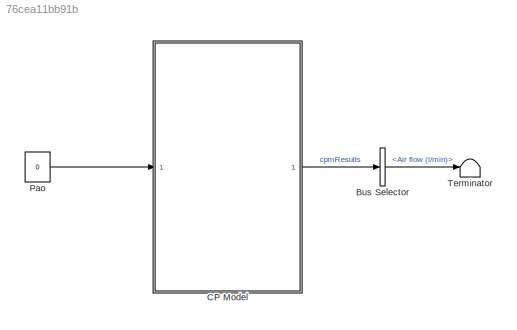
MODEL slx_76cea11bb91b
KIND model
CONFIG AbsTol = auto
CONFIG EnableMultiTasking = on
CONFIG FixedStep = StepSize
CONFIG InitFcn = logFreq = 100; % logging frequency\nStepSize = 5e-4; % simulation step size\n\n%% PARAMETER INITIALIZATION\nmodelname = gcs;\np = Simulink.Mask.get([modelname, '/CP Model']);\n\n%% HEART\n% Basal heart period, T0 (s):\np.Parameters(1,1).Value = '0.58';\n%% Right atrium\n% RA Compliance, Cra (ml/mmHg):\np.Parameters(1,2).Value = '31.25';\n% RA Resistance, Rra (mmHg s/ml):\np.Parameters(1,3).Value = '0.0025';\n% R...<+9319ch>
CONFIG MaxStep = auto
CONFIG MinStep = auto
CONFIG PostLoadFcn = %% PARAMETER INITIALIZATION\nmodelname = gcs;\np = Simulink.Mask.get([modelname, '/CP Model']);\n\n%% HEART\n% Basal heart period, T0 (s):\np.Parameters(1,1).Value = '0.58';\n%% Right atrium\n% RA Compliance, Cra (ml/mmHg):\np.Parameters(1,2).Value = '31.25';\n% RA Resistance, Rra (mmHg s/ml):\np.Parameters(1,3).Value = '0.0025';\n% RA Unstressed volume, Vu_ra (ml):\np.Parameters(1,4).Value = '22';\n%% Left atr...<+9243ch>
CONFIG RelTol = 1e-3
CONFIG SampleTimeConstraint = Unconstrained
CONFIG Solver = ode4
CONFIG SolverName = ode4
CONFIG StartTime = 0.0
CONFIG StopFcn = cpmResults = cpm_jap{1}.Values;
CONFIG StopTime = inf
BLOCK [BusSelector] Bus Selector
  OutputAsBus = off
  OutputSignals = lungs.Air flow (l/min)
  Ports = [1, 1]
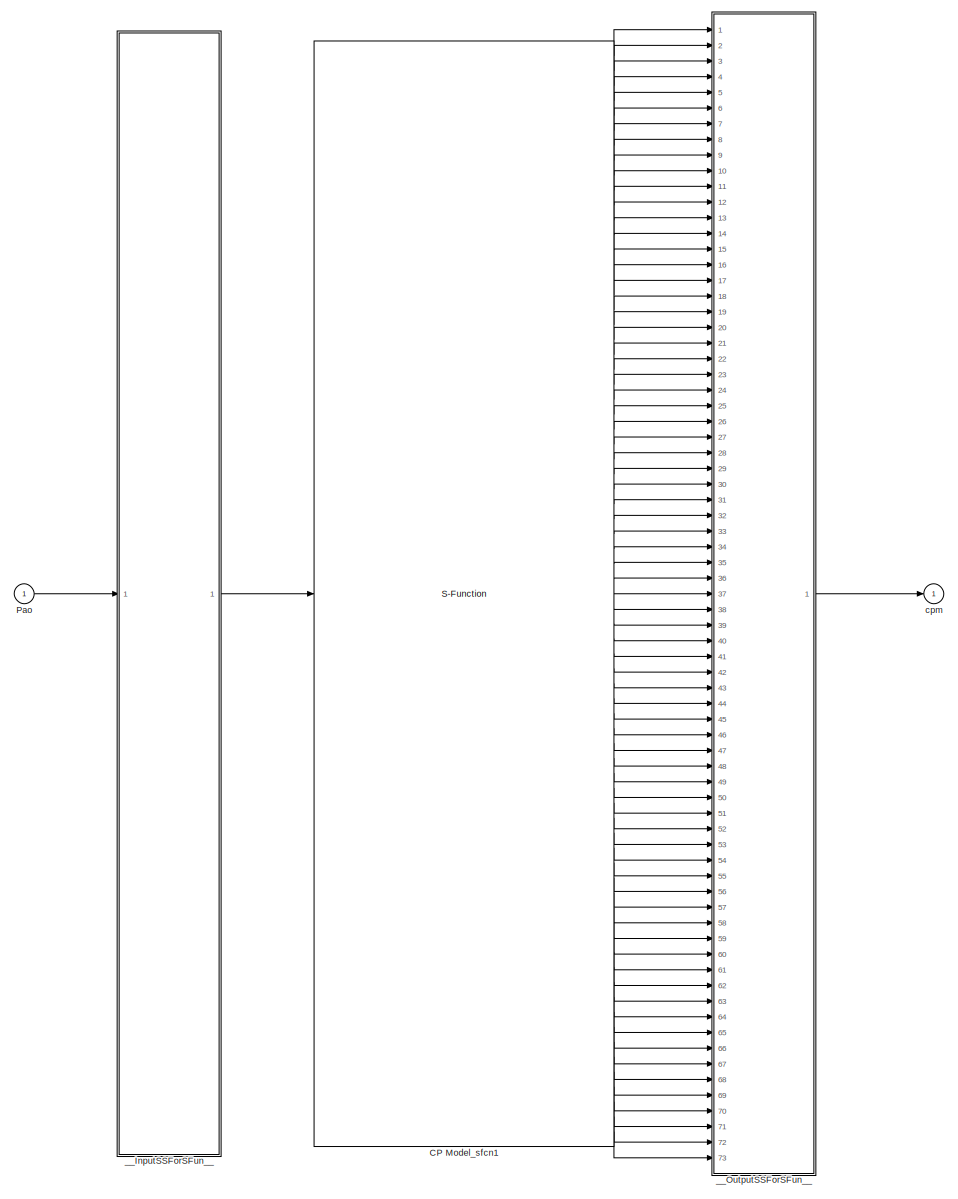
[diagram: CP Model - part 1/1, most of the canvas]
BLOCK [SubSystem] CP Model
  Ports = [1, 1]
  RequestExecContextInheritance = off
BLOCK [S-Function] CP Model/CP Model_sfcn1
  CopyFcn = if ~strcmp(get_param(gcb,'Linkstatus'),'none') && ...\n~strcmp(get_param(gcb,'Linkstatus'),'implicit')      \n  set_param(gcb,'LinkStatus','none');                \nend
  EnableBusSupport = off
  FunctionName = CP_sf
  Parameters = sfcnParam1, sfcnParam2, sfcnParam3, sfcnParam4, sfcnParam5, sfcnParam6, sfcnParam7, sfcnParam8, sfcnParam9, sfcnParam10, sfcnParam11, sfcnParam12, sfcnParam13, sfcnParam14, sfcnParam15, sfcnParam16, sfcnParam17, sfcnParam18, sfcnParam19, sfcnParam20, sfcnParam21, sfcnParam22, sfcnParam23, sfcnParam24, sfcnParam25, sfcnParam26, sfcnParam27, sfcnParam28, sfcnParam29, sfcnParam30, sfcnParam31, sfcnPa...<+1044ch>
  Ports = [1, 73]
  SFcnIsStateOwnerBlock = on
  SFcnStateName = DWORK0
  SFunctionDeploymentMode = off
BLOCK [Inport] CP Model/Pao
  IconDisplay = Port number
  Unit = cmH2O
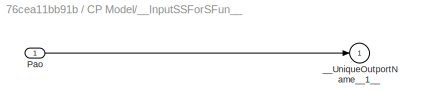
BLOCK [SubSystem] CP Model/__InputSSForSFun__
  PermitHierarchicalResolution = ExplicitOnly
  Ports = [1, 1]
  RequestExecContextInheritance = off
BLOCK [Inport] CP Model/__InputSSForSFun__/Pao
  IconDisplay = Port number
  Unit = cmH2O
BLOCK [Outport] CP Model/__InputSSForSFun__/__UniqueOutportName__1__
  IconDisplay = Port number
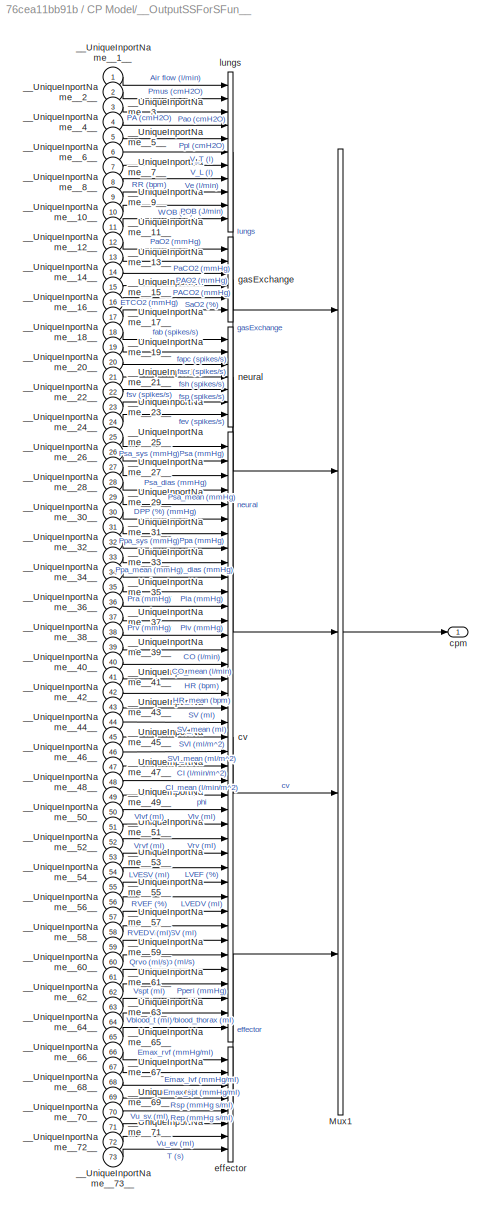
BLOCK [SubSystem] CP Model/__OutputSSForSFun__
  PermitHierarchicalResolution = ExplicitOnly
  Ports = [73, 1]
  RequestExecContextInheritance = off
BLOCK [BusCreator] CP Model/__OutputSSForSFun__/Mux1
  InheritFromInputs = on
  Inputs = 5
  Ports = [5, 1]
BLOCK [Inport] CP Model/__OutputSSForSFun__/__UniqueInportName__10__
  IconDisplay = Port number
  Port = 10
BLOCK [Inport] CP Model/__OutputSSForSFun__/__UniqueInportName__11__
  IconDisplay = Port number
  Port = 11
BLOCK [Inport] CP Model/__OutputSSForSFun__/__UniqueInportName__12__
  IconDisplay = Port number
  Port = 12
BLOCK [Inport] CP Model/__OutputSSForSFun__/__UniqueInportName__13__
  IconDisplay = Port number
  Port = 13
BLOCK [Inport] CP Model/__OutputSSForSFun__/__UniqueInportName__14__
  IconDisplay = Port number
  Port = 14
BLOCK [Inport] CP Model/__OutputSSForSFun__/__UniqueInportName__15__
  IconDisplay = Port number
  Port = 15
BLOCK [Inport] CP Model/__OutputSSForSFun__/__UniqueInportName__16__
  IconDisplay = Port number
  Port = 16
BLOCK [Inport] CP Model/__OutputSSForSFun__/__UniqueInportName__17__
  IconDisplay = Port number
  Port = 17
BLOCK [Inport] CP Model/__OutputSSForSFun__/__UniqueInportName__18__
  IconDisplay = Port number
  Port = 18
BLOCK [Inport] CP Model/__OutputSSForSFun__/__UniqueInportName__19__
  IconDisplay = Port number
  Port = 19
BLOCK [Inport] CP Model/__OutputSSForSFun__/__UniqueInportName__1__
  IconDisplay = Port number
  Unit = l/min
BLOCK [Inport] CP Model/__OutputSSForSFun__/__UniqueInportName__20__
  IconDisplay = Port number
  Port = 20
BLOCK [Inport] CP Model/__OutputSSForSFun__/__UniqueInportName__21__
  IconDisplay = Port number
  Port = 21
BLOCK [Inport] CP Model/__OutputSSForSFun__/__UniqueInportName__22__
  IconDisplay = Port number
  Port = 22
BLOCK [Inport] CP Model/__OutputSSForSFun__/__UniqueInportName__23__
  IconDisplay = Port number
  Port = 23
BLOCK [Inport] CP Model/__OutputSSForSFun__/__UniqueInportName__24__
  IconDisplay = Port number
  Port = 24
BLOCK [Inport] CP Model/__OutputSSForSFun__/__UniqueInportName__25__
  IconDisplay = Port number
  Port = 25
BLOCK [Inport] CP Model/__OutputSSForSFun__/__UniqueInportName__26__
  IconDisplay = Port number
  Port = 26
BLOCK [Inport] CP Model/__OutputSSForSFun__/__UniqueInportName__27__
  IconDisplay = Port number
  Port = 27
BLOCK [Inport] CP Model/__OutputSSForSFun__/__UniqueInportName__28__
  IconDisplay = Port number
  Port = 28
BLOCK [Inport] CP Model/__OutputSSForSFun__/__UniqueInportName__29__
  IconDisplay = Port number
  Port = 29
BLOCK [Inport] CP Model/__OutputSSForSFun__/__UniqueInportName__2__
  IconDisplay = Port number
  Port = 2
BLOCK [Inport] CP Model/__OutputSSForSFun__/__UniqueInportName__30__
  IconDisplay = Port number
  Port = 30
BLOCK [Inport] CP Model/__OutputSSForSFun__/__UniqueInportName__31__
  IconDisplay = Port number
  Port = 31
BLOCK [Inport] CP Model/__OutputSSForSFun__/__UniqueInportName__32__
  IconDisplay = Port number
  Port = 32
BLOCK [Inport] CP Model/__OutputSSForSFun__/__UniqueInportName__33__
  IconDisplay = Port number
  Port = 33
BLOCK [Inport] CP Model/__OutputSSForSFun__/__UniqueInportName__34__
  IconDisplay = Port number
  Port = 34
BLOCK [Inport] CP Model/__OutputSSForSFun__/__UniqueInportName__35__
  IconDisplay = Port number
  Port = 35
BLOCK [Inport] CP Model/__OutputSSForSFun__/__UniqueInportName__36__
  IconDisplay = Port number
  Port = 36
BLOCK [Inport] CP Model/__OutputSSForSFun__/__UniqueInportName__37__
  IconDisplay = Port number
  Port = 37
BLOCK [Inport] CP Model/__OutputSSForSFun__/__UniqueInportName__38__
  IconDisplay = Port number
  Port = 38
BLOCK [Inport] CP Model/__OutputSSForSFun__/__UniqueInportName__39__
  IconDisplay = Port number
  Port = 39
BLOCK [Inport] CP Model/__OutputSSForSFun__/__UniqueInportName__3__
  IconDisplay = Port number
  Port = 3
BLOCK [Inport] CP Model/__OutputSSForSFun__/__UniqueInportName__40__
  IconDisplay = Port number
  Port = 40
BLOCK [Inport] CP Model/__OutputSSForSFun__/__UniqueInportName__41__
  IconDisplay = Port number
  Port = 41
BLOCK [Inport] CP Model/__OutputSSForSFun__/__UniqueInportName__42__
  IconDisplay = Port number
  Port = 42
BLOCK [Inport] CP Model/__OutputSSForSFun__/__UniqueInportName__43__
  IconDisplay = Port number
  Port = 43
BLOCK [Inport] CP Model/__OutputSSForSFun__/__UniqueInportName__44__
  IconDisplay = Port number
  Port = 44
BLOCK [Inport] CP Model/__OutputSSForSFun__/__UniqueInportName__45__
  IconDisplay = Port number
  Port = 45
BLOCK [Inport] CP Model/__OutputSSForSFun__/__UniqueInportName__46__
  IconDisplay = Port number
  Port = 46
BLOCK [Inport] CP Model/__OutputSSForSFun__/__UniqueInportName__47__
  IconDisplay = Port number
  Port = 47
BLOCK [Inport] CP Model/__OutputSSForSFun__/__UniqueInportName__48__
  IconDisplay = Port number
  Port = 48
BLOCK [Inport] CP Model/__OutputSSForSFun__/__UniqueInportName__49__
  IconDisplay = Port number
  Port = 49
BLOCK [Inport] CP Model/__OutputSSForSFun__/__UniqueInportName__4__
  IconDisplay = Port number
  Port = 4
BLOCK [Inport] CP Model/__OutputSSForSFun__/__UniqueInportName__50__
  IconDisplay = Port number
  Port = 50
BLOCK [Inport] CP Model/__OutputSSForSFun__/__UniqueInportName__51__
  IconDisplay = Port number
  Port = 51
BLOCK [Inport] CP Model/__OutputSSForSFun__/__UniqueInportName__52__
  IconDisplay = Port number
  Port = 52
BLOCK [Inport] CP Model/__OutputSSForSFun__/__UniqueInportName__53__
  IconDisplay = Port number
  Port = 53
BLOCK [Inport] CP Model/__OutputSSForSFun__/__UniqueInportName__54__
  IconDisplay = Port number
  Port = 54
BLOCK [Inport] CP Model/__OutputSSForSFun__/__UniqueInportName__55__
  IconDisplay = Port number
  Port = 55
BLOCK [Inport] CP Model/__OutputSSForSFun__/__UniqueInportName__56__
  IconDisplay = Port number
  Port = 56
BLOCK [Inport] CP Model/__OutputSSForSFun__/__UniqueInportName__57__
  IconDisplay = Port number
  Port = 57
BLOCK [Inport] CP Model/__OutputSSForSFun__/__UniqueInportName__58__
  IconDisplay = Port number
  Port = 58
BLOCK [Inport] CP Model/__OutputSSForSFun__/__UniqueInportName__59__
  IconDisplay = Port number
  Port = 59
BLOCK [Inport] CP Model/__OutputSSForSFun__/__UniqueInportName__5__
  IconDisplay = Port number
  Port = 5
BLOCK [Inport] CP Model/__OutputSSForSFun__/__UniqueInportName__60__
  IconDisplay = Port number
  Port = 60
BLOCK [Inport] CP Model/__OutputSSForSFun__/__UniqueInportName__61__
  IconDisplay = Port number
  Port = 61
BLOCK [Inport] CP Model/__OutputSSForSFun__/__UniqueInportName__62__
  IconDisplay = Port number
  Port = 62
BLOCK [Inport] CP Model/__OutputSSForSFun__/__UniqueInportName__63__
  IconDisplay = Port number
  Port = 63
BLOCK [Inport] CP Model/__OutputSSForSFun__/__UniqueInportName__64__
  IconDisplay = Port number
  Port = 64
BLOCK [Inport] CP Model/__OutputSSForSFun__/__UniqueInportName__65__
  IconDisplay = Port number
  Port = 65
BLOCK [Inport] CP Model/__OutputSSForSFun__/__UniqueInportName__66__
  IconDisplay = Port number
  Port = 66
BLOCK [Inport] CP Model/__OutputSSForSFun__/__UniqueInportName__67__
  IconDisplay = Port number
  Port = 67
BLOCK [Inport] CP Model/__OutputSSForSFun__/__UniqueInportName__68__
  IconDisplay = Port number
  Port = 68
BLOCK [Inport] CP Model/__OutputSSForSFun__/__UniqueInportName__69__
  IconDisplay = Port number
  Port = 69
BLOCK [Inport] CP Model/__OutputSSForSFun__/__UniqueInportName__6__
  IconDisplay = Port number
  Port = 6
BLOCK [Inport] CP Model/__OutputSSForSFun__/__UniqueInportName__70__
  IconDisplay = Port number
  Port = 70
BLOCK [Inport] CP Model/__OutputSSForSFun__/__UniqueInportName__71__
  IconDisplay = Port number
  Port = 71
BLOCK [Inport] CP Model/__OutputSSForSFun__/__UniqueInportName__72__
  IconDisplay = Port number
  Port = 72
BLOCK [Inport] CP Model/__OutputSSForSFun__/__UniqueInportName__73__
  IconDisplay = Port number
  Port = 73
BLOCK [Inport] CP Model/__OutputSSForSFun__/__UniqueInportName__7__
  IconDisplay = Port number
  Port = 7
BLOCK [Inport] CP Model/__OutputSSForSFun__/__UniqueInportName__8__
  IconDisplay = Port number
  Port = 8
BLOCK [Inport] CP Model/__OutputSSForSFun__/__UniqueInportName__9__
  IconDisplay = Port number
  Port = 9
BLOCK [Outport] CP Model/__OutputSSForSFun__/cpm
  IconDisplay = Port number
BLOCK [BusCreator] CP Model/__OutputSSForSFun__/cv
  InheritFromInputs = on
  Inputs = 41
  Ports = [41, 1]
BLOCK [BusCreator] CP Model/__OutputSSForSFun__/effector
  InheritFromInputs = on
  Inputs = 8
  Ports = [8, 1]
BLOCK [BusCreator] CP Model/__OutputSSForSFun__/gasExchange
  InheritFromInputs = on
  Inputs = 6
  Ports = [6, 1]
BLOCK [BusCreator] CP Model/__OutputSSForSFun__/lungs
  InheritFromInputs = on
  Inputs = 11
  Ports = [11, 1]
BLOCK [BusCreator] CP Model/__OutputSSForSFun__/neural
  InheritFromInputs = on
  Inputs = 7
  Ports = [7, 1]
BLOCK [Outport] CP Model/cpm
  IconDisplay = Port number
BLOCK [Constant] Pao
  Value = 0
BLOCK [Terminator] Terminator
LINE Bus Selector:1 -> Terminator:1
LINE CP Model/CP Model_sfcn1:1 -> CP Model/__OutputSSForSFun__:1
LINE CP Model/CP Model_sfcn1:10 -> CP Model/__OutputSSForSFun__:10
LINE CP Model/CP Model_sfcn1:11 -> CP Model/__OutputSSForSFun__:11
LINE CP Model/CP Model_sfcn1:12 -> CP Model/__OutputSSForSFun__:12
LINE CP Model/CP Model_sfcn1:13 -> CP Model/__OutputSSForSFun__:13
LINE CP Model/CP Model_sfcn1:14 -> CP Model/__OutputSSForSFun__:14
LINE CP Model/CP Model_sfcn1:15 -> CP Model/__OutputSSForSFun__:15
LINE CP Model/CP Model_sfcn1:16 -> CP Model/__OutputSSForSFun__:16
LINE CP Model/CP Model_sfcn1:17 -> CP Model/__OutputSSForSFun__:17
LINE CP Model/CP Model_sfcn1:18 -> CP Model/__OutputSSForSFun__:18
LINE CP Model/CP Model_sfcn1:19 -> CP Model/__OutputSSForSFun__:19
LINE CP Model/CP Model_sfcn1:2 -> CP Model/__OutputSSForSFun__:2
LINE CP Model/CP Model_sfcn1:20 -> CP Model/__OutputSSForSFun__:20
LINE CP Model/CP Model_sfcn1:21 -> CP Model/__OutputSSForSFun__:21
LINE CP Model/CP Model_sfcn1:22 -> CP Model/__OutputSSForSFun__:22
LINE CP Model/CP Model_sfcn1:23 -> CP Model/__OutputSSForSFun__:23
LINE CP Model/CP Model_sfcn1:24 -> CP Model/__OutputSSForSFun__:24
LINE CP Model/CP Model_sfcn1:25 -> CP Model/__OutputSSForSFun__:25
LINE CP Model/CP Model_sfcn1:26 -> CP Model/__OutputSSForSFun__:26
LINE CP Model/CP Model_sfcn1:27 -> CP Model/__OutputSSForSFun__:27
LINE CP Model/CP Model_sfcn1:28 -> CP Model/__OutputSSForSFun__:28
LINE CP Model/CP Model_sfcn1:29 -> CP Model/__OutputSSForSFun__:29
LINE CP Model/CP Model_sfcn1:3 -> CP Model/__OutputSSForSFun__:3
LINE CP Model/CP Model_sfcn1:30 -> CP Model/__OutputSSForSFun__:30
LINE CP Model/CP Model_sfcn1:31 -> CP Model/__OutputSSForSFun__:31
LINE CP Model/CP Model_sfcn1:32 -> CP Model/__OutputSSForSFun__:32
LINE CP Model/CP Model_sfcn1:33 -> CP Model/__OutputSSForSFun__:33
LINE CP Model/CP Model_sfcn1:34 -> CP Model/__OutputSSForSFun__:34
LINE CP Model/CP Model_sfcn1:35 -> CP Model/__OutputSSForSFun__:35
LINE CP Model/CP Model_sfcn1:36 -> CP Model/__OutputSSForSFun__:36
LINE CP Model/CP Model_sfcn1:37 -> CP Model/__OutputSSForSFun__:37
LINE CP Model/CP Model_sfcn1:38 -> CP Model/__OutputSSForSFun__:38
LINE CP Model/CP Model_sfcn1:39 -> CP Model/__OutputSSForSFun__:39
LINE CP Model/CP Model_sfcn1:4 -> CP Model/__OutputSSForSFun__:4
LINE CP Model/CP Model_sfcn1:40 -> CP Model/__OutputSSForSFun__:40
LINE CP Model/CP Model_sfcn1:41 -> CP Model/__OutputSSForSFun__:41
LINE CP Model/CP Model_sfcn1:42 -> CP Model/__OutputSSForSFun__:42
LINE CP Model/CP Model_sfcn1:43 -> CP Model/__OutputSSForSFun__:43
LINE CP Model/CP Model_sfcn1:44 -> CP Model/__OutputSSForSFun__:44
LINE CP Model/CP Model_sfcn1:45 -> CP Model/__OutputSSForSFun__:45
LINE CP Model/CP Model_sfcn1:46 -> CP Model/__OutputSSForSFun__:46
LINE CP Model/CP Model_sfcn1:47 -> CP Model/__OutputSSForSFun__:47
LINE CP Model/CP Model_sfcn1:48 -> CP Model/__OutputSSForSFun__:48
LINE CP Model/CP Model_sfcn1:49 -> CP Model/__OutputSSForSFun__:49
LINE CP Model/CP Model_sfcn1:5 -> CP Model/__OutputSSForSFun__:5
LINE CP Model/CP Model_sfcn1:50 -> CP Model/__OutputSSForSFun__:50
LINE CP Model/CP Model_sfcn1:51 -> CP Model/__OutputSSForSFun__:51
LINE CP Model/CP Model_sfcn1:52 -> CP Model/__OutputSSForSFun__:52
LINE CP Model/CP Model_sfcn1:53 -> CP Model/__OutputSSForSFun__:53
LINE CP Model/CP Model_sfcn1:54 -> CP Model/__OutputSSForSFun__:54
LINE CP Model/CP Model_sfcn1:55 -> CP Model/__OutputSSForSFun__:55
LINE CP Model/CP Model_sfcn1:56 -> CP Model/__OutputSSForSFun__:56
LINE CP Model/CP Model_sfcn1:57 -> CP Model/__OutputSSForSFun__:57
LINE CP Model/CP Model_sfcn1:58 -> CP Model/__OutputSSForSFun__:58
LINE CP Model/CP Model_sfcn1:59 -> CP Model/__OutputSSForSFun__:59
LINE CP Model/CP Model_sfcn1:6 -> CP Model/__OutputSSForSFun__:6
LINE CP Model/CP Model_sfcn1:60 -> CP Model/__OutputSSForSFun__:60
LINE CP Model/CP Model_sfcn1:61 -> CP Model/__OutputSSForSFun__:61
LINE CP Model/CP Model_sfcn1:62 -> CP Model/__OutputSSForSFun__:62
LINE CP Model/CP Model_sfcn1:63 -> CP Model/__OutputSSForSFun__:63
LINE CP Model/CP Model_sfcn1:64 -> CP Model/__OutputSSForSFun__:64
LINE CP Model/CP Model_sfcn1:65 -> CP Model/__OutputSSForSFun__:65
LINE CP Model/CP Model_sfcn1:66 -> CP Model/__OutputSSForSFun__:66
LINE CP Model/CP Model_sfcn1:67 -> CP Model/__OutputSSForSFun__:67
LINE CP Model/CP Model_sfcn1:68 -> CP Model/__OutputSSForSFun__:68
LINE CP Model/CP Model_sfcn1:69 -> CP Model/__OutputSSForSFun__:69
LINE CP Model/CP Model_sfcn1:7 -> CP Model/__OutputSSForSFun__:7
LINE CP Model/CP Model_sfcn1:70 -> CP Model/__OutputSSForSFun__:70
LINE CP Model/CP Model_sfcn1:71 -> CP Model/__OutputSSForSFun__:71
LINE CP Model/CP Model_sfcn1:72 -> CP Model/__OutputSSForSFun__:72
LINE CP Model/CP Model_sfcn1:73 -> CP Model/__OutputSSForSFun__:73
LINE CP Model/CP Model_sfcn1:8 -> CP Model/__OutputSSForSFun__:8
LINE CP Model/CP Model_sfcn1:9 -> CP Model/__OutputSSForSFun__:9
LINE CP Model/Pao:1 -> CP Model/__InputSSForSFun__:1
LINE CP Model/__InputSSForSFun__/Pao:1 -> CP Model/__InputSSForSFun__/__UniqueOutportName__1__:1
LINE CP Model/__InputSSForSFun__:1 -> CP Model/CP Model_sfcn1:1
LINE CP Model/__OutputSSForSFun__/Mux1:1 -> CP Model/__OutputSSForSFun__/cpm:1
LINE CP Model/__OutputSSForSFun__/__UniqueInportName__10__:1 -> CP Model/__OutputSSForSFun__/lungs:10
LINE CP Model/__OutputSSForSFun__/__UniqueInportName__11__:1 -> CP Model/__OutputSSForSFun__/lungs:11
LINE CP Model/__OutputSSForSFun__/__UniqueInportName__12__:1 -> CP Model/__OutputSSForSFun__/gasExchange:1
LINE CP Model/__OutputSSForSFun__/__UniqueInportName__13__:1 -> CP Model/__OutputSSForSFun__/gasExchange:2
LINE CP Model/__OutputSSForSFun__/__UniqueInportName__14__:1 -> CP Model/__OutputSSForSFun__/gasExchange:3
LINE CP Model/__OutputSSForSFun__/__UniqueInportName__15__:1 -> CP Model/__OutputSSForSFun__/gasExchange:4
LINE CP Model/__OutputSSForSFun__/__UniqueInportName__16__:1 -> CP Model/__OutputSSForSFun__/gasExchange:5
LINE CP Model/__OutputSSForSFun__/__UniqueInportName__17__:1 -> CP Model/__OutputSSForSFun__/gasExchange:6
LINE CP Model/__OutputSSForSFun__/__UniqueInportName__18__:1 -> CP Model/__OutputSSForSFun__/neural:1
LINE CP Model/__OutputSSForSFun__/__UniqueInportName__19__:1 -> CP Model/__OutputSSForSFun__/neural:2
LINE CP Model/__OutputSSForSFun__/__UniqueInportName__1__:1 -> CP Model/__OutputSSForSFun__/lungs:1
LINE CP Model/__OutputSSForSFun__/__UniqueInportName__20__:1 -> CP Model/__OutputSSForSFun__/neural:3
LINE CP Model/__OutputSSForSFun__/__UniqueInportName__21__:1 -> CP Model/__OutputSSForSFun__/neural:4
LINE CP Model/__OutputSSForSFun__/__UniqueInportName__22__:1 -> CP Model/__OutputSSForSFun__/neural:5
LINE CP Model/__OutputSSForSFun__/__UniqueInportName__23__:1 -> CP Model/__OutputSSForSFun__/neural:6
LINE CP Model/__OutputSSForSFun__/__UniqueInportName__24__:1 -> CP Model/__OutputSSForSFun__/neural:7
LINE CP Model/__OutputSSForSFun__/__UniqueInportName__25__:1 -> CP Model/__OutputSSForSFun__/cv:1
LINE CP Model/__OutputSSForSFun__/__UniqueInportName__26__:1 -> CP Model/__OutputSSForSFun__/cv:2
LINE CP Model/__OutputSSForSFun__/__UniqueInportName__27__:1 -> CP Model/__OutputSSForSFun__/cv:3
LINE CP Model/__OutputSSForSFun__/__UniqueInportName__28__:1 -> CP Model/__OutputSSForSFun__/cv:4
LINE CP Model/__OutputSSForSFun__/__UniqueInportName__29__:1 -> CP Model/__OutputSSForSFun__/cv:5
LINE CP Model/__OutputSSForSFun__/__UniqueInportName__2__:1 -> CP Model/__OutputSSForSFun__/lungs:2
LINE CP Model/__OutputSSForSFun__/__UniqueInportName__30__:1 -> CP Model/__OutputSSForSFun__/cv:6
LINE CP Model/__OutputSSForSFun__/__UniqueInportName__31__:1 -> CP Model/__OutputSSForSFun__/cv:7
LINE CP Model/__OutputSSForSFun__/__UniqueInportName__32__:1 -> CP Model/__OutputSSForSFun__/cv:8
LINE CP Model/__OutputSSForSFun__/__UniqueInportName__33__:1 -> CP Model/__OutputSSForSFun__/cv:9
LINE CP Model/__OutputSSForSFun__/__UniqueInportName__34__:1 -> CP Model/__OutputSSForSFun__/cv:10
LINE CP Model/__OutputSSForSFun__/__UniqueInportName__35__:1 -> CP Model/__OutputSSForSFun__/cv:11
LINE CP Model/__OutputSSForSFun__/__UniqueInportName__36__:1 -> CP Model/__OutputSSForSFun__/cv:12
LINE CP Model/__OutputSSForSFun__/__UniqueInportName__37__:1 -> CP Model/__OutputSSForSFun__/cv:13
LINE CP Model/__OutputSSForSFun__/__UniqueInportName__38__:1 -> CP Model/__OutputSSForSFun__/cv:14
LINE CP Model/__OutputSSForSFun__/__UniqueInportName__39__:1 -> CP Model/__OutputSSForSFun__/cv:15
LINE CP Model/__OutputSSForSFun__/__UniqueInportName__3__:1 -> CP Model/__OutputSSForSFun__/lungs:3
LINE CP Model/__OutputSSForSFun__/__UniqueInportName__40__:1 -> CP Model/__OutputSSForSFun__/cv:16
LINE CP Model/__OutputSSForSFun__/__UniqueInportName__41__:1 -> CP Model/__OutputSSForSFun__/cv:17
LINE CP Model/__OutputSSForSFun__/__UniqueInportName__42__:1 -> CP Model/__OutputSSForSFun__/cv:18
LINE CP Model/__OutputSSForSFun__/__UniqueInportName__43__:1 -> CP Model/__OutputSSForSFun__/cv:19
LINE CP Model/__OutputSSForSFun__/__UniqueInportName__44__:1 -> CP Model/__OutputSSForSFun__/cv:20
LINE CP Model/__OutputSSForSFun__/__UniqueInportName__45__:1 -> CP Model/__OutputSSForSFun__/cv:21
LINE CP Model/__OutputSSForSFun__/__UniqueInportName__46__:1 -> CP Model/__OutputSSForSFun__/cv:22
LINE CP Model/__OutputSSForSFun__/__UniqueInportName__47__:1 -> CP Model/__OutputSSForSFun__/cv:23
LINE CP Model/__OutputSSForSFun__/__UniqueInportName__48__:1 -> CP Model/__OutputSSForSFun__/cv:24
LINE CP Model/__OutputSSForSFun__/__UniqueInportName__49__:1 -> CP Model/__OutputSSForSFun__/cv:25
LINE CP Model/__OutputSSForSFun__/__UniqueInportName__4__:1 -> CP Model/__OutputSSForSFun__/lungs:4
LINE CP Model/__OutputSSForSFun__/__UniqueInportName__50__:1 -> CP Model/__OutputSSForSFun__/cv:26
LINE CP Model/__OutputSSForSFun__/__UniqueInportName__51__:1 -> CP Model/__OutputSSForSFun__/cv:27
LINE CP Model/__OutputSSForSFun__/__UniqueInportName__52__:1 -> CP Model/__OutputSSForSFun__/cv:28
LINE CP Model/__OutputSSForSFun__/__UniqueInportName__53__:1 -> CP Model/__OutputSSForSFun__/cv:29
LINE CP Model/__OutputSSForSFun__/__UniqueInportName__54__:1 -> CP Model/__OutputSSForSFun__/cv:30
LINE CP Model/__OutputSSForSFun__/__UniqueInportName__55__:1 -> CP Model/__OutputSSForSFun__/cv:31
LINE CP Model/__OutputSSForSFun__/__UniqueInportName__56__:1 -> CP Model/__OutputSSForSFun__/cv:32
LINE CP Model/__OutputSSForSFun__/__UniqueInportName__57__:1 -> CP Model/__OutputSSForSFun__/cv:33
LINE CP Model/__OutputSSForSFun__/__UniqueInportName__58__:1 -> CP Model/__OutputSSForSFun__/cv:34
LINE CP Model/__OutputSSForSFun__/__UniqueInportName__59__:1 -> CP Model/__OutputSSForSFun__/cv:35
LINE CP Model/__OutputSSForSFun__/__UniqueInportName__5__:1 -> CP Model/__OutputSSForSFun__/lungs:5
LINE CP Model/__OutputSSForSFun__/__UniqueInportName__60__:1 -> CP Model/__OutputSSForSFun__/cv:36
LINE CP Model/__OutputSSForSFun__/__UniqueInportName__61__:1 -> CP Model/__OutputSSForSFun__/cv:37
LINE CP Model/__OutputSSForSFun__/__UniqueInportName__62__:1 -> CP Model/__OutputSSForSFun__/cv:38
LINE CP Model/__OutputSSForSFun__/__UniqueInportName__63__:1 -> CP Model/__OutputSSForSFun__/cv:39
LINE CP Model/__OutputSSForSFun__/__UniqueInportName__64__:1 -> CP Model/__OutputSSForSFun__/cv:40
LINE CP Model/__OutputSSForSFun__/__UniqueInportName__65__:1 -> CP Model/__OutputSSForSFun__/cv:41
LINE CP Model/__OutputSSForSFun__/__UniqueInportName__66__:1 -> CP Model/__OutputSSForSFun__/effector:1
LINE CP Model/__OutputSSForSFun__/__UniqueInportName__67__:1 -> CP Model/__OutputSSForSFun__/effector:2
LINE CP Model/__OutputSSForSFun__/__UniqueInportName__68__:1 -> CP Model/__OutputSSForSFun__/effector:3
LINE CP Model/__OutputSSForSFun__/__UniqueInportName__69__:1 -> CP Model/__OutputSSForSFun__/effector:4
LINE CP Model/__OutputSSForSFun__/__UniqueInportName__6__:1 -> CP Model/__OutputSSForSFun__/lungs:6
LINE CP Model/__OutputSSForSFun__/__UniqueInportName__70__:1 -> CP Model/__OutputSSForSFun__/effector:5
LINE CP Model/__OutputSSForSFun__/__UniqueInportName__71__:1 -> CP Model/__OutputSSForSFun__/effector:6
LINE CP Model/__OutputSSForSFun__/__UniqueInportName__72__:1 -> CP Model/__OutputSSForSFun__/effector:7
LINE CP Model/__OutputSSForSFun__/__UniqueInportName__73__:1 -> CP Model/__OutputSSForSFun__/effector:8
LINE CP Model/__OutputSSForSFun__/__UniqueInportName__7__:1 -> CP Model/__OutputSSForSFun__/lungs:7
LINE CP Model/__OutputSSForSFun__/__UniqueInportName__8__:1 -> CP Model/__OutputSSForSFun__/lungs:8
LINE CP Model/__OutputSSForSFun__/__UniqueInportName__9__:1 -> CP Model/__OutputSSForSFun__/lungs:9
LINE CP Model/__OutputSSForSFun__/cv:1 -> CP Model/__OutputSSForSFun__/Mux1:4
LINE CP Model/__OutputSSForSFun__/effector:1 -> CP Model/__OutputSSForSFun__/Mux1:5
LINE CP Model/__OutputSSForSFun__/gasExchange:1 -> CP Model/__OutputSSForSFun__/Mux1:2
LINE CP Model/__OutputSSForSFun__/lungs:1 -> CP Model/__OutputSSForSFun__/Mux1:1
LINE CP Model/__OutputSSForSFun__/neural:1 -> CP Model/__OutputSSForSFun__/Mux1:3
LINE CP Model/__OutputSSForSFun__:1 -> CP Model/cpm:1
LINE CP Model:1 -> Bus Selector:1
LINE Pao:1 -> CP Model:1
